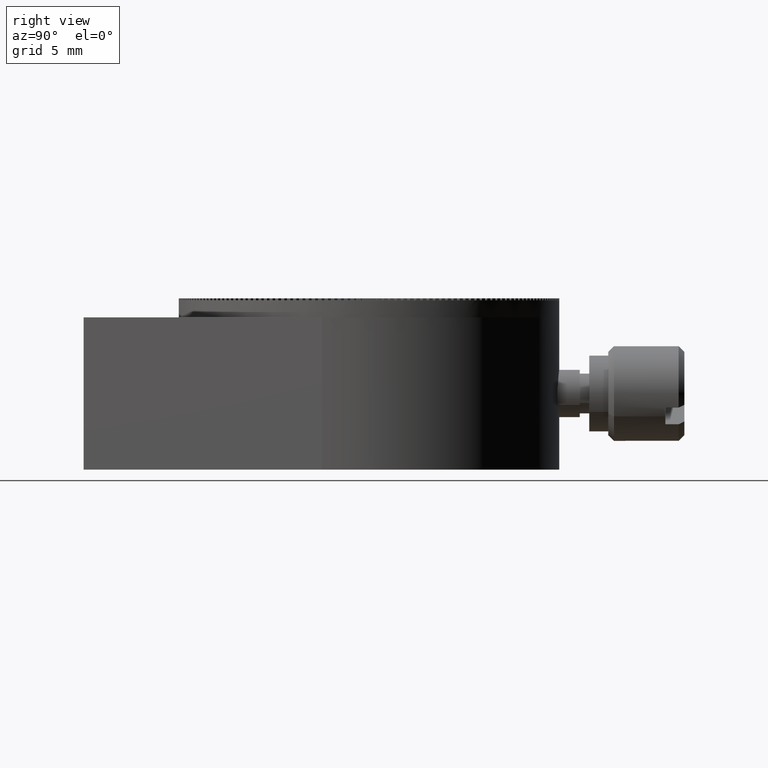
[diagram: clean part render]
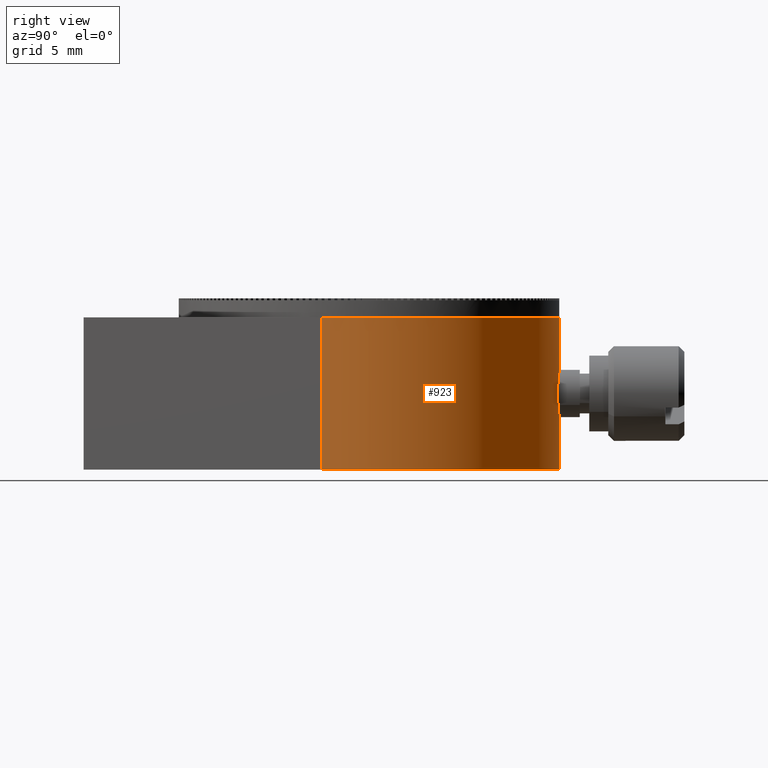
[diagram: same view with one face highlighted and labeled with its STEP entity id]
A machine part, right view. The second image highlights one B-rep face of the part: STEP entity #923.
In plain terms, the highlighted cylindrical surface (partial cylindrical patch) has radius 10 mm, axis along (0, 0, -1).
Its self-contained STEP definition (entity closure, byte-faithful):
#923 = ADVANCED_FACE ( 'NONE', ( #7108 ), #41489, .T. ) ;
#991 = CIRCLE ( 'NONE', #45767, 10.00000000000000178 ) ;
#1057 = CARTESIAN_POINT ( 'NONE',  ( 0.1353897219158174403, 10.00000000000000178, 2.974999999999997424 ) ) ;
#2491 = B_SPLINE_CURVE_WITH_KNOTS ( 'NONE', 3,
 ( #38520, #9242, #23903, #57963, #14334, #33757, #53185, #9571, #10492, #58891 ),
 .UNSPECIFIED., .F., .F.,
 ( 4, 2, 2, 2, 4 ),
 ( 0.000000000000000000, 0.0004009330677708612071, 0.0008018661355417224142, 0.001202799203312583621, 0.001603732271083444828 ),
 .UNSPECIFIED. ) ;
#4502 = B_SPLINE_CURVE_WITH_KNOTS ( 'NONE', 3,
 ( #35132, #1057, #30338, #25562, #50081, #25893, #45313, #40522 ),
 .UNSPECIFIED., .F., .F.,
 ( 4, 2, 2, 4 ),
 ( 0.004810474159971976117, 0.005211027732655659252, 0.005611581305339341519, 0.006412688450706707788 ),
 .UNSPECIFIED. ) ;
#5815 = EDGE_CURVE ( 'NONE', #49214, #18597, #46798, .T. ) ;
#5992 = ORIENTED_EDGE ( 'NONE', *, *, #28017, .F. ) ;
#7108 = FACE_OUTER_BOUND ( 'NONE', #27927, .T. ) ;
#8100 = CIRCLE ( 'NONE', #45729, 10.00000000000000178 ) ;
#9242 = CARTESIAN_POINT ( 'NONE',  ( 1.024999999999997691, 9.947330043785623133, 4.135575541331665939 ) ) ;
#9571 = CARTESIAN_POINT ( 'NONE',  ( 0.2688422297191208621, 9.997148089837459395, 4.998089586661095041 ) ) ;
#9773 = CARTESIAN_POINT ( 'NONE',  ( 9.690842183186660463, -2.467301720619115901, 8.000000000000000000 ) ) ;
#10065 = CARTESIAN_POINT ( 'NONE',  ( 9.690842183186660463, -2.467301720619115901, 0.000000000000000000 ) ) ;
#10492 = CARTESIAN_POINT ( 'NONE',  ( 0.1338399054814966571, 10.00000000000002842, 5.025000000000256151 ) ) ;
#11761 = DIRECTION ( 'NONE',  ( 0.000000000000000000, 0.000000000000000000, -1.000000000000000000 ) ) ;
#12273 = DIRECTION ( 'NONE',  ( 4.242212147858331957E-47, -1.000000000000000000, 0.000000000000000000 ) ) ;
#14334 = CARTESIAN_POINT ( 'NONE',  ( 0.8190718470144949803, 9.966850547905588442, 4.630567710515688162 ) ) ;
#14538 = CARTESIAN_POINT ( 'NONE',  ( -4.242212147858332930E-46, 10.00000000000000178, 0.000000000000000000 ) ) ;
#16207 = CARTESIAN_POINT ( 'NONE',  ( -4.242212147858332930E-46, 10.00000000000000178, 8.000000000000000000 ) ) ;
#16837 = ORIENTED_EDGE ( 'NONE', *, *, #29607, .T. ) ;
#17287 = DIRECTION ( 'NONE',  ( 0.000000000000000000, 0.000000000000000000, -1.000000000000000000 ) ) ;
#17635 = EDGE_CURVE ( 'NONE', #30373, #53361, #4502, .T. ) ;
#17924 = CARTESIAN_POINT ( 'NONE',  ( 0.000000000000000000, 0.000000000000000000, 8.000000000000000000 ) ) ;
#18597 = VERTEX_POINT ( 'NONE', #29985 ) ;
#19017 = DIRECTION ( 'NONE',  ( 0.000000000000000000, 0.000000000000000000, -1.000000000000000000 ) ) ;
#19835 = CARTESIAN_POINT ( 'NONE',  ( -2.539754964719421301E-14, 10.00000000000000178, 2.975000000000001865 ) ) ;
#22111 = CARTESIAN_POINT ( 'NONE',  ( 1.024999999999997913, 9.947330043785621356, 4.000000000000000000 ) ) ;
#22288 = DIRECTION ( 'NONE',  ( 0.000000000000000000, 0.000000000000000000, -1.000000000000000000 ) ) ;
#23614 = EDGE_CURVE ( 'NONE', #44565, #25983, #27938, .T. ) ;
#23903 = CARTESIAN_POINT ( 'NONE',  ( 0.9982677431307437343, 9.950182786592963069, 4.268606708322318255 ) ) ;
#25000 = ORIENTED_EDGE ( 'NONE', *, *, #38694, .F. ) ;
#25562 = CARTESIAN_POINT ( 'NONE',  ( 0.5165017767039085106, 9.987424342908765240, 3.104516656031674593 ) ) ;
#25643 = CARTESIAN_POINT ( 'NONE',  ( 0.000000000000000000, 0.000000000000000000, 8.000000000000000000 ) ) ;
#25893 = CARTESIAN_POINT ( 'NONE',  ( 0.9135074998504411070, 9.959989755278741086, 3.463818532176223819 ) ) ;
#25983 = VERTEX_POINT ( 'NONE', #10065 ) ;
#27927 = EDGE_LOOP ( 'NONE', ( #38337, #5992, #39546, #53870, #25000, #42055, #16837 ) ) ;
#27938 = LINE ( 'NONE', #9773, #32890 ) ;
#28017 = EDGE_CURVE ( 'NONE', #44565, #49214, #8100, .T. ) ;
#29117 = CARTESIAN_POINT ( 'NONE',  ( 0.000000000000000000, 0.000000000000000000, 0.000000000000000000 ) ) ;
#29607 = EDGE_CURVE ( 'NONE', #53361, #18597, #2491, .T. ) ;
#29985 = CARTESIAN_POINT ( 'NONE',  ( -1.327736574037000003E-12, 10.00000000000117417, 5.025000000011450751 ) ) ;
#30338 = CARTESIAN_POINT ( 'NONE',  ( 0.2683458111096655996, 9.997170080393990688, 3.001673885785369311 ) ) ;
#30373 = VERTEX_POINT ( 'NONE', #19835 ) ;
#32791 = CARTESIAN_POINT ( 'NONE',  ( -4.242212147858332930E-46, 10.00000000000000178, 8.000000000000000000 ) ) ;
#32890 = VECTOR ( 'NONE', #19017, 1000.000000000000000 ) ;
#33162 = EDGE_CURVE ( 'NONE', #25983, #35530, #991, .T. ) ;
#33757 = CARTESIAN_POINT ( 'NONE',  ( 0.6299543987815142687, 9.980588459119710265, 4.819543643482488982 ) ) ;
#35132 = CARTESIAN_POINT ( 'NONE',  ( -2.539754964719421301E-14, 10.00000000000000178, 2.975000000000001865 ) ) ;
#35530 = VERTEX_POINT ( 'NONE', #14538 ) ;
#35750 = CARTESIAN_POINT ( 'NONE',  ( 9.690842183186660463, -2.467301720619115901, 8.000000000000000000 ) ) ;
#37906 = VECTOR ( 'NONE', #22288, 1000.000000000000000 ) ;
#38337 = ORIENTED_EDGE ( 'NONE', *, *, #5815, .F. ) ;
#38442 = VECTOR ( 'NONE', #11761, 1000.000000000000000 ) ;
#38520 = CARTESIAN_POINT ( 'NONE',  ( 1.024999999999997913, 9.947330043785621356, 4.000000000000000000 ) ) ;
#38694 = EDGE_CURVE ( 'NONE', #30373, #35530, #59837, .T. ) ;
#39546 = ORIENTED_EDGE ( 'NONE', *, *, #23614, .T. ) ;
#40522 = CARTESIAN_POINT ( 'NONE',  ( 1.024999999999997913, 9.947330043785621356, 4.000000000000000000 ) ) ;
#41244 = DIRECTION ( 'NONE',  ( 0.000000000000000000, 0.000000000000000000, 1.000000000000000000 ) ) ;
#41489 = CYLINDRICAL_SURFACE ( 'NONE', #52995, 10.00000000000000178 ) ;
#42055 = ORIENTED_EDGE ( 'NONE', *, *, #17635, .T. ) ;
#42488 = CARTESIAN_POINT ( 'NONE',  ( -4.242212147858332930E-46, 10.00000000000000178, 8.000000000000000000 ) ) ;
#43749 = DIRECTION ( 'NONE',  ( 0.000000000000000000, 0.000000000000000000, 1.000000000000000000 ) ) ;
#44565 = VERTEX_POINT ( 'NONE', #35750 ) ;
#45313 = CARTESIAN_POINT ( 'NONE',  ( 1.024999999999997691, 9.947330043785619580, 3.729105569910439399 ) ) ;
#45729 = AXIS2_PLACEMENT_3D ( 'NONE', #25643, #41244, #12273 ) ;
#45767 = AXIS2_PLACEMENT_3D ( 'NONE', #29117, #43749, #59335 ) ;
#46572 = DIRECTION ( 'NONE',  ( -4.242212147858331957E-47, 1.000000000000000000, 0.000000000000000000 ) ) ;
#46798 = LINE ( 'NONE', #32791, #37906 ) ;
#49214 = VERTEX_POINT ( 'NONE', #42488 ) ;
#50081 = CARTESIAN_POINT ( 'NONE',  ( 0.6300771395991970891, 9.980579931423806173, 3.180568381233247255 ) ) ;
#52995 = AXIS2_PLACEMENT_3D ( 'NONE', #17924, #17287, #46572 ) ;
#53185 = CARTESIAN_POINT ( 'NONE',  ( 0.5156021966865326212, 9.987462162601323357, 4.895886902601933599 ) ) ;
#53361 = VERTEX_POINT ( 'NONE', #22111 ) ;
#53870 = ORIENTED_EDGE ( 'NONE', *, *, #33162, .T. ) ;
#57963 = CARTESIAN_POINT ( 'NONE',  ( 0.8952728528740486746, 9.959978036747518360, 4.516889320491204174 ) ) ;
#58891 = CARTESIAN_POINT ( 'NONE',  ( -1.327736574037000003E-12, 10.00000000000117417, 5.025000000011450751 ) ) ;
#59335 = DIRECTION ( 'NONE',  ( 4.242212147858331957E-47, -1.000000000000000000, 0.000000000000000000 ) ) ;
#59837 = LINE ( 'NONE', #16207, #38442 ) ;